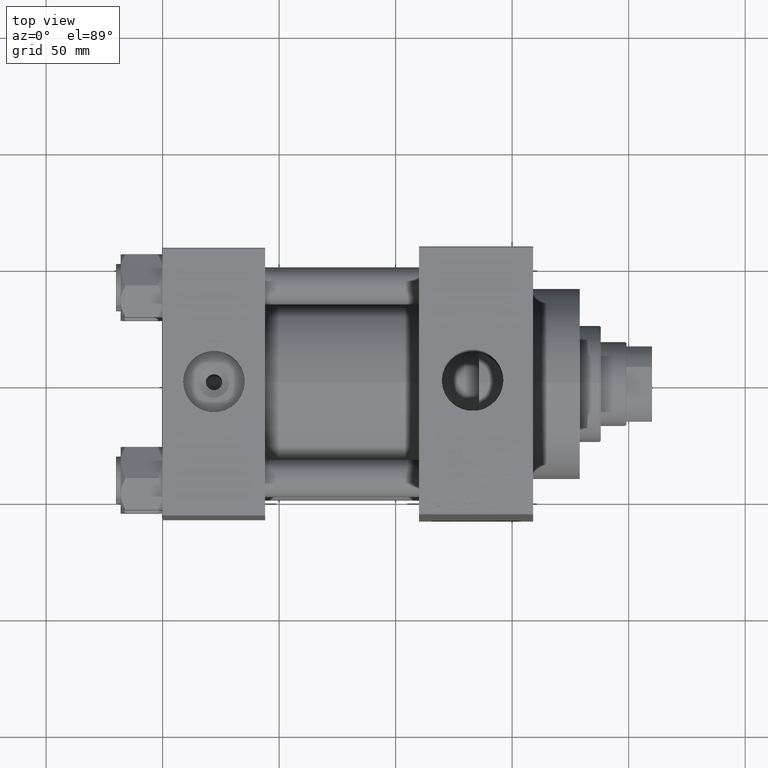
[diagram: clean part render]
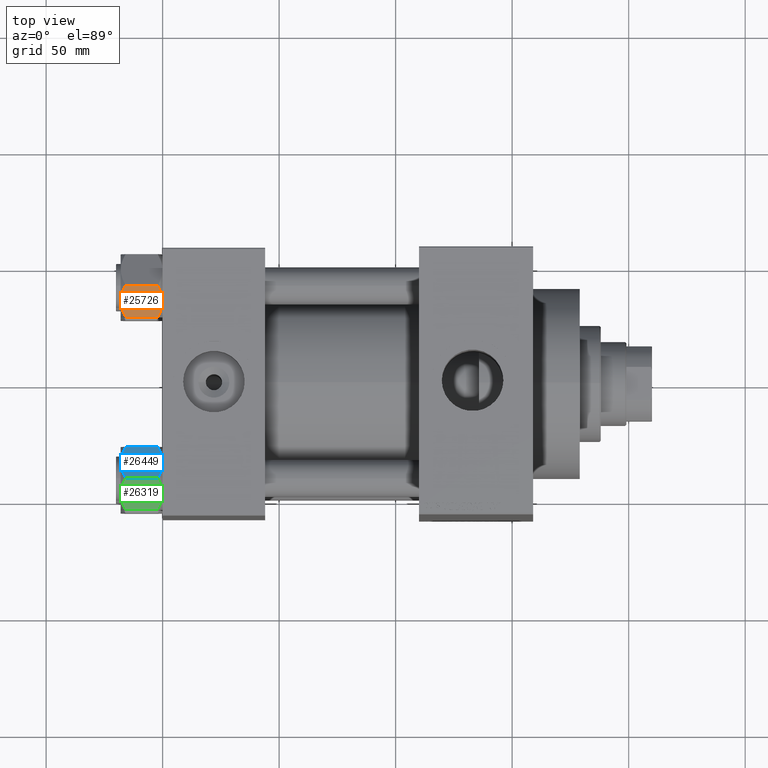
[diagram: same view with three faces highlighted in distinct colors, each labeled with its STEP entity id]
A machine part, top view with three faces highlighted in distinct colors.
Their STEP definitions:

[orange] entity #25726 — the highlighted planar face has unit normal (0, 0.5, -0.866).
#102 = DIRECTION ( 'NONE',  ( -0.5000000000000001110, -0.8660254037844387076, 0.000000000000000000 ) ) ;
#238 = CARTESIAN_POINT ( 'NONE',  ( 8.202637790192648382, -12.84724820552770908, -16.29368822085855584 ) ) ;
#325 = CARTESIAN_POINT ( 'NONE',  ( 15.62000000000000455, -3.536926823623210771E-15, -16.00000000000000000 ) ) ;
#660 = VECTOR ( 'NONE', #8064, 999.9999999999998863 ) ;
#1945 = EDGE_CURVE ( 'NONE', #2830, #23566, #42271, .T. ) ;
#2670 = CARTESIAN_POINT ( 'NONE',  ( 10.06459418565412989, -9.622245127110609531, -0.3836066851120581433 ) ) ;
#2830 = VERTEX_POINT ( 'NONE', #38232 ) ;
#3575 = CARTESIAN_POINT ( 'NONE',  ( 9.124083218049246824, -11.25125790807804016, -17.05261278537718539 ) ) ;
#4096 = PLANE ( 'NONE',  #26119 ) ;
#4291 = CARTESIAN_POINT ( 'NONE',  ( 7.903528262322682352, -13.36532110482643176, -16.00000000000000000 ) ) ;
#6053 = CARTESIAN_POINT ( 'NONE',  ( 10.38662926516872531, -9.064464007571851667, -0.2430846701012975009 ) ) ;
#6239 = ORIENTED_EDGE ( 'NONE', *, *, #24090, .T. ) ;
#6387 = CARTESIAN_POINT ( 'NONE',  ( 15.62000000000000455, -3.536926823623210771E-15, -18.00000000000000000 ) ) ;
#7159 = ORIENTED_EDGE ( 'NONE', *, *, #12786, .F. ) ;
#7236 = DIRECTION ( 'NONE',  ( -0.8660254037844387076, 0.5000000000000001110, 0.000000000000000000 ) ) ;
#7332 = VECTOR ( 'NONE', #28852, 999.9999999999998863 ) ;
#7803 = CARTESIAN_POINT ( 'NONE',  ( 7.810000000000007603, -13.52731680711293016, -1.999999999999998224 ) ) ;
#8064 = DIRECTION ( 'NONE',  ( 0.5000000000000001110, 0.8660254037844387076, -0.000000000000000000 ) ) ;
#8452 = ORIENTED_EDGE ( 'NONE', *, *, #13703, .F. ) ;
#10376 = VERTEX_POINT ( 'NONE', #7803 ) ;
#10507 = ORIENTED_EDGE ( 'NONE', *, *, #12649, .F. ) ;
#10597 = LINE ( 'NONE', #21198, #41448 ) ;
#10614 = CARTESIAN_POINT ( 'NONE',  ( 15.62000000000000455, -3.536926823623210771E-15, -18.00000000000000000 ) ) ;
#12649 = EDGE_CURVE ( 'NONE', #20649, #27408, #46070, .T. ) ;
#12786 = EDGE_CURVE ( 'NONE', #38297, #43657, #19115, .T. ) ;
#12800 = CARTESIAN_POINT ( 'NONE',  ( 13.99051971937274708, -2.822342635978012826, -0.7317196846281138756 ) ) ;
#13037 = CARTESIAN_POINT ( 'NONE',  ( 14.92394044919338825, -1.205610507090637107, -1.434462921875002239 ) ) ;
#13521 = CARTESIAN_POINT ( 'NONE',  ( 11.38181071908715047, -7.340759166634875044, -6.776263578034402713E-17 ) ) ;
#13703 = EDGE_CURVE ( 'NONE', #27408, #19399, #40923, .T. ) ;
#13734 = CARTESIAN_POINT ( 'NONE',  ( 14.30591678195076533, -2.276058899034901550, -0.9473872146228129454 ) ) ;
#13859 = LINE ( 'NONE', #6387, #39140 ) ;
#14433 = CARTESIAN_POINT ( 'NONE',  ( 8.506059550806623903, -12.32170630002230638, -16.56553707812499354 ) ) ;
#15808 = VECTOR ( 'NONE', #102, 999.9999999999998863 ) ;
#16247 = EDGE_LOOP ( 'NONE', ( #10507, #6239, #26668, #47704, #42371, #43609, #23099, #7159, #36111, #8452 ) ) ;
#16928 = CARTESIAN_POINT ( 'NONE',  ( 11.71500000000000519, -6.763658403556470411, -18.00000000000000000 ) ) ;
#17541 = CARTESIAN_POINT ( 'NONE',  ( 15.52647173767733157, -0.1619957022865091689, -2.000000000000000000 ) ) ;
#17952 = CARTESIAN_POINT ( 'NONE',  ( 11.71500000000000519, -6.763658403556470411, -18.00000000000000000 ) ) ;
#18083 = DIRECTION ( 'NONE',  ( -0.5000000000000000000, -0.8660254037844385966, 0.000000000000000000 ) ) ;
#19115 = LINE ( 'NONE', #25870, #15808 ) ;
#19399 = VERTEX_POINT ( 'NONE', #17952 ) ;
#20649 = VERTEX_POINT ( 'NONE', #325 ) ;
#21198 = CARTESIAN_POINT ( 'NONE',  ( 15.62000000000000455, -3.536926823623210771E-15, -1.999999999999998224 ) ) ;
#21394 = CARTESIAN_POINT ( 'NONE',  ( 15.62000000000000455, -3.536926823623210771E-15, -1.999999999999998224 ) ) ;
#23099 = ORIENTED_EDGE ( 'NONE', *, *, #36851, .F. ) ;
#23566 = VERTEX_POINT ( 'NONE', #42518 ) ;
#23647 = CARTESIAN_POINT ( 'NONE',  ( 12.37702203890362895, -5.617002596445058060, 1.219727444046192488E-16 ) ) ;
#23941 = EDGE_CURVE ( 'NONE', #42659, #25986, #10597, .T. ) ;
#24090 = EDGE_CURVE ( 'NONE', #20649, #25986, #13859, .T. ) ;
#24111 = EDGE_CURVE ( 'NONE', #10376, #2830, #43754, .T. ) ;
#24373 = CARTESIAN_POINT ( 'NONE',  ( 9.114548888011794858, -11.26777185211903998, -0.9142282604026928938 ) ) ;
#24587 = CARTESIAN_POINT ( 'NONE',  ( 15.52647173767733157, -0.1619957022865091689, -2.000000000000000000 ) ) ;
#25236 = CARTESIAN_POINT ( 'NONE',  ( 15.62000000000000455, -3.536926823623210771E-15, -16.00000000000000000 ) ) ;
#25263 = VECTOR ( 'NONE', #28945, 1000.000000000000000 ) ;
#25726 = ADVANCED_FACE ( 'NONE', ( #43644 ), #4096, .F. ) ;
#25870 = CARTESIAN_POINT ( 'NONE',  ( 15.62000000000000455, -3.536926823623210771E-15, -16.00000000000000000 ) ) ;
#25986 = VERTEX_POINT ( 'NONE', #21394 ) ;
#26119 = AXIS2_PLACEMENT_3D ( 'NONE', #10614, #7236, #18083 ) ;
#26668 = ORIENTED_EDGE ( 'NONE', *, *, #23941, .F. ) ;
#27408 = VERTEX_POINT ( 'NONE', #29405 ) ;
#28641 = B_SPLINE_CURVE_WITH_KNOTS ( 'NONE', 3,
 ( #40256, #40734, #43611, #40011, #3575, #14433, #238, #4291 ),
 .UNSPECIFIED., .F., .F.,
 ( 4, 2, 2, 4 ),
 ( 0.007890825462474429161, 0.01181022244528553977, 0.01376992093669109768, 0.01572961942809665559 ),
 .UNSPECIFIED. ) ;
#28852 = DIRECTION ( 'NONE',  ( -0.5000000000000001110, -0.8660254037844387076, 0.000000000000000000 ) ) ;
#28945 = DIRECTION ( 'NONE',  ( -0.000000000000000000, -0.000000000000000000, 1.000000000000000000 ) ) ;
#29405 = CARTESIAN_POINT ( 'NONE',  ( 15.52647173767733157, -0.1619957022865091689, -16.00000000000000000 ) ) ;
#30946 = CARTESIAN_POINT ( 'NONE',  ( 13.04337073483128862, -4.462852799541089155, -17.75691532989871035 ) ) ;
#31857 = CARTESIAN_POINT ( 'NONE',  ( 11.71500000000000519, -6.763658403556470411, 0.000000000000000000 ) ) ;
#34318 = CARTESIAN_POINT ( 'NONE',  ( 14.31545111198822262, -2.259544954993898624, -17.08577173959729834 ) ) ;
#34972 = CARTESIAN_POINT ( 'NONE',  ( 7.810000000000007603, -13.52731680711293016, -16.00000000000000000 ) ) ;
#34986 = CARTESIAN_POINT ( 'NONE',  ( 15.22736220980736732, -0.6800686015852290822, -1.706311779141445495 ) ) ;
#35068 = B_SPLINE_CURVE_WITH_KNOTS ( 'NONE', 3,
 ( #45839, #23647, #41994, #12800, #13734, #13037, #34986, #24587 ),
 .UNSPECIFIED., .F., .F.,
 ( 4, 2, 2, 4 ),
 ( 0.007890825462474423957, 0.01181022244528553630, 0.01376992093669109421, 0.01572961942809665212 ),
 .UNSPECIFIED. ) ;
#35256 = CARTESIAN_POINT ( 'NONE',  ( 12.04818928091285635, -6.186557640478064890, -17.99999999999999645 ) ) ;
#35475 = CARTESIAN_POINT ( 'NONE',  ( 11.04378428799595646, -7.926238119586006547, -0.05089381635301474388 ) ) ;
#35915 = DIRECTION ( 'NONE',  ( 0.5000000000000001110, 0.8660254037844387076, -0.000000000000000000 ) ) ;
#36111 = ORIENTED_EDGE ( 'NONE', *, *, #43783, .F. ) ;
#36769 = CARTESIAN_POINT ( 'NONE',  ( 15.62000000000000455, -3.536926823623210771E-15, -1.999999999999998224 ) ) ;
#36851 = EDGE_CURVE ( 'NONE', #43657, #10376, #39592, .T. ) ;
#37945 = CARTESIAN_POINT ( 'NONE',  ( 13.36540581434588049, -3.905071680002326406, -17.61639331488793658 ) ) ;
#38056 = EDGE_CURVE ( 'NONE', #23566, #42659, #35068, .T. ) ;
#38232 = CARTESIAN_POINT ( 'NONE',  ( 7.903528262322682352, -13.36532110482643176, -2.000000000000000000 ) ) ;
#38297 = VERTEX_POINT ( 'NONE', #44350 ) ;
#39140 = VECTOR ( 'NONE', #46648, 1000.000000000000000 ) ;
#39592 = LINE ( 'NONE', #40311, #25263 ) ;
#40011 = CARTESIAN_POINT ( 'NONE',  ( 9.439480280627265074, -10.70497417113492666, -17.26828031537187869 ) ) ;
#40256 = CARTESIAN_POINT ( 'NONE',  ( 11.71500000000000519, -6.763658403556470411, -18.00000000000000000 ) ) ;
#40311 = CARTESIAN_POINT ( 'NONE',  ( 7.810000000000007603, -13.52731680711293016, -18.00000000000000000 ) ) ;
#40734 = CARTESIAN_POINT ( 'NONE',  ( 11.05297796109638320, -7.910314210667885426, -18.00000000000000000 ) ) ;
#40923 = B_SPLINE_CURVE_WITH_KNOTS ( 'NONE', 3,
 ( #46109, #45655, #34318, #37945, #30946, #42500, #35256, #16928 ),
 .UNSPECIFIED., .F., .F.,
 ( 4, 2, 2, 4 ),
 ( 4.472842641924621132E-07, 0.003945636373369313527, 0.005918230917921871344, 0.007890825462474429161 ),
 .UNSPECIFIED. ) ;
#41448 = VECTOR ( 'NONE', #35915, 999.9999999999998863 ) ;
#41994 = CARTESIAN_POINT ( 'NONE',  ( 13.02784502466563588, -4.489744118371591597, -0.1971866459924554171 ) ) ;
#42271 = B_SPLINE_CURVE_WITH_KNOTS ( 'NONE', 3,
 ( #43183, #42946, #24373, #2670, #6053, #35475, #13521, #31857 ),
 .UNSPECIFIED., .F., .F.,
 ( 4, 2, 2, 4 ),
 ( 4.472842641884425184E-07, 0.003945636373369303986, 0.005918230917921863538, 0.007890825462474423957 ),
 .UNSPECIFIED. ) ;
#42371 = ORIENTED_EDGE ( 'NONE', *, *, #1945, .F. ) ;
#42500 = CARTESIAN_POINT ( 'NONE',  ( 12.38621571200405391, -5.601078687526932498, -17.94910618364698607 ) ) ;
#42518 = CARTESIAN_POINT ( 'NONE',  ( 11.71500000000000519, -6.763658403556470411, 0.000000000000000000 ) ) ;
#42659 = VERTEX_POINT ( 'NONE', #17541 ) ;
#42946 = CARTESIAN_POINT ( 'NONE',  ( 8.502393313253758578, -12.32805640973648309, -1.411989271640068599 ) ) ;
#43183 = CARTESIAN_POINT ( 'NONE',  ( 7.903528262322682352, -13.36532110482643176, -2.000000000000000000 ) ) ;
#43609 = ORIENTED_EDGE ( 'NONE', *, *, #24111, .F. ) ;
#43611 = CARTESIAN_POINT ( 'NONE',  ( 10.40215497533437627, -9.037572688741349225, -17.80281335400754372 ) ) ;
#43644 = FACE_OUTER_BOUND ( 'NONE', #16247, .T. ) ;
#43657 = VERTEX_POINT ( 'NONE', #34972 ) ;
#43754 = LINE ( 'NONE', #36769, #660 ) ;
#43783 = EDGE_CURVE ( 'NONE', #19399, #38297, #28641, .T. ) ;
#44350 = CARTESIAN_POINT ( 'NONE',  ( 7.903528262322682352, -13.36532110482643176, -16.00000000000000000 ) ) ;
#45655 = CARTESIAN_POINT ( 'NONE',  ( 14.92760668674625180, -1.199260397376455067, -16.58801072835992585 ) ) ;
#45839 = CARTESIAN_POINT ( 'NONE',  ( 11.71500000000000519, -6.763658403556470411, 0.000000000000000000 ) ) ;
#46070 = LINE ( 'NONE', #25236, #7332 ) ;
#46109 = CARTESIAN_POINT ( 'NONE',  ( 15.52647173767733157, -0.1619957022865091689, -16.00000000000000000 ) ) ;
#46648 = DIRECTION ( 'NONE',  ( -0.000000000000000000, -0.000000000000000000, 1.000000000000000000 ) ) ;
#47704 = ORIENTED_EDGE ( 'NONE', *, *, #38056, .F. ) ;

[blue] entity #26449 — the highlighted planar face has unit normal (0, -0.5, -0.866).
#228 = VERTEX_POINT ( 'NONE', #19339 ) ;
#250 = CARTESIAN_POINT ( 'NONE',  ( -8.202637790192644829, -12.84724820552771085, -1.706311779141443274 ) ) ;
#1588 = CARTESIAN_POINT ( 'NONE',  ( -7.810000000000004050, -13.52731680711293194, -16.00000000000000000 ) ) ;
#2278 = LINE ( 'NONE', #31460, #14175 ) ;
#2630 = ORIENTED_EDGE ( 'NONE', *, *, #28985, .F. ) ;
#3053 = FACE_OUTER_BOUND ( 'NONE', #33964, .T. ) ;
#3728 = EDGE_CURVE ( 'NONE', #38766, #9154, #30758, .T. ) ;
#3833 = CARTESIAN_POINT ( 'NONE',  ( -10.40215497533437450, -9.037572688741349225, -0.1971866459924505599 ) ) ;
#3961 = EDGE_CURVE ( 'NONE', #29527, #47595, #41585, .T. ) ;
#4467 = VECTOR ( 'NONE', #8806, 1000.000000000000114 ) ;
#4604 = CARTESIAN_POINT ( 'NONE',  ( -7.810000000000004050, -13.52731680711293194, -1.999999999999998224 ) ) ;
#4743 = CARTESIAN_POINT ( 'NONE',  ( -7.903528262322677023, -13.36532110482643176, -16.00000000000000000 ) ) ;
#4795 = DIRECTION ( 'NONE',  ( 0.4999999999999995559, -0.8660254037844389297, 0.000000000000000000 ) ) ;
#5628 = CARTESIAN_POINT ( 'NONE',  ( -15.52647173767732980, -0.1619957022864866314, -2.000000000000000000 ) ) ;
#6486 = ORIENTED_EDGE ( 'NONE', *, *, #25058, .F. ) ;
#7325 = EDGE_CURVE ( 'NONE', #228, #9154, #8817, .T. ) ;
#7936 = LINE ( 'NONE', #22637, #13141 ) ;
#8329 = DIRECTION ( 'NONE',  ( -0.000000000000000000, -0.000000000000000000, 1.000000000000000000 ) ) ;
#8806 = DIRECTION ( 'NONE',  ( -0.4999999999999995559, 0.8660254037844389297, 0.000000000000000000 ) ) ;
#8817 = LINE ( 'NONE', #34145, #13323 ) ;
#8832 = CARTESIAN_POINT ( 'NONE',  ( -11.71500000000000874, -6.763658403556465082, 0.000000000000000000 ) ) ;
#9154 = VERTEX_POINT ( 'NONE', #4604 ) ;
#9402 = B_SPLINE_CURVE_WITH_KNOTS ( 'NONE', 3,
 ( #33124, #44201, #18399, #14543, #21279, #25865, #25383, #35999 ),
 .UNSPECIFIED., .F., .F.,
 ( 4, 2, 2, 4 ),
 ( 4.472842642040518533E-07, 0.003945636373369329139, 0.005918230917921892160, 0.007890825462474455182 ),
 .UNSPECIFIED. ) ;
#9524 = VERTEX_POINT ( 'NONE', #38312 ) ;
#10227 = EDGE_CURVE ( 'NONE', #47595, #9524, #2278, .T. ) ;
#10755 = B_SPLINE_CURVE_WITH_KNOTS ( 'NONE', 3,
 ( #4743, #37545, #41405, #45252, #23065, #12471, #22359, #19687 ),
 .UNSPECIFIED., .F., .F.,
 ( 4, 2, 2, 4 ),
 ( 4.472842641823326050E-07, 0.003945636373369307455, 0.005918230917921868742, 0.007890825462474429161 ),
 .UNSPECIFIED. ) ;
#12455 = CARTESIAN_POINT ( 'NONE',  ( -7.903528262322677023, -13.36532110482643176, -2.000000000000000000 ) ) ;
#12471 = CARTESIAN_POINT ( 'NONE',  ( -11.04378428799594936, -7.926238119586001218, -17.94910618364699317 ) ) ;
#13042 = AXIS2_PLACEMENT_3D ( 'NONE', #39956, #14381, #40204 ) ;
#13141 = VECTOR ( 'NONE', #4795, 1000.000000000000114 ) ;
#13323 = VECTOR ( 'NONE', #38008, 1000.000000000000114 ) ;
#14175 = VECTOR ( 'NONE', #46164, 1000.000000000000114 ) ;
#14381 = DIRECTION ( 'NONE',  ( 0.8660254037844389297, 0.4999999999999995559, 0.000000000000000000 ) ) ;
#14543 = CARTESIAN_POINT ( 'NONE',  ( -13.36540581434588226, -3.905071680002311751, -0.3836066851120544796 ) ) ;
#16369 = ORIENTED_EDGE ( 'NONE', *, *, #3961, .F. ) ;
#17688 = CARTESIAN_POINT ( 'NONE',  ( -14.92394044919338825, -1.205610507090617345, -16.56553707812499709 ) ) ;
#17835 = CARTESIAN_POINT ( 'NONE',  ( -7.810000000000004050, -13.52731680711293194, -16.00000000000000000 ) ) ;
#17928 = CARTESIAN_POINT ( 'NONE',  ( -13.99051971937274530, -2.822342635977994618, -17.26828031537188934 ) ) ;
#18399 = CARTESIAN_POINT ( 'NONE',  ( -14.31545111198821552, -2.259544954993879973, -0.9142282604026908954 ) ) ;
#18552 = CARTESIAN_POINT ( 'NONE',  ( -9.124083218049239719, -11.25125790807803483, -0.9473872146228100588 ) ) ;
#18870 = CARTESIAN_POINT ( 'NONE',  ( -15.52647173767732980, -0.1619957022864866314, -16.00000000000000000 ) ) ;
#19339 = CARTESIAN_POINT ( 'NONE',  ( -7.903528262322677023, -13.36532110482643176, -2.000000000000000000 ) ) ;
#19658 = CARTESIAN_POINT ( 'NONE',  ( -7.810000000000004050, -13.52731680711293194, -18.00000000000000000 ) ) ;
#19673 = CARTESIAN_POINT ( 'NONE',  ( -11.05297796109638320, -7.910314210667880985, 6.220609964635581690E-15 ) ) ;
#19687 = CARTESIAN_POINT ( 'NONE',  ( -11.71500000000000874, -6.763658403556465082, -18.00000000000000000 ) ) ;
#20744 = VECTOR ( 'NONE', #8329, 1000.000000000000000 ) ;
#21279 = CARTESIAN_POINT ( 'NONE',  ( -13.04337073483128329, -4.462852799541076720, -0.2430846701012917832 ) ) ;
#22359 = CARTESIAN_POINT ( 'NONE',  ( -11.38181071908714692, -7.340759166634862609, -18.00000000000000711 ) ) ;
#22622 = EDGE_CURVE ( 'NONE', #38766, #30226, #25692, .T. ) ;
#22637 = CARTESIAN_POINT ( 'NONE',  ( -7.810000000000004050, -13.52731680711293194, -1.999999999999998224 ) ) ;
#23065 = CARTESIAN_POINT ( 'NONE',  ( -10.38662926516871998, -9.064464007571846338, -17.75691532989870325 ) ) ;
#23079 = ORIENTED_EDGE ( 'NONE', *, *, #40561, .F. ) ;
#23144 = ORIENTED_EDGE ( 'NONE', *, *, #10227, .F. ) ;
#24763 = PLANE ( 'NONE',  #13042 ) ;
#25035 = B_SPLINE_CURVE_WITH_KNOTS ( 'NONE', 3,
 ( #8832, #19673, #3833, #44110, #18552, #33275, #250, #12455 ),
 .UNSPECIFIED., .F., .F.,
 ( 4, 2, 2, 4 ),
 ( 0.007890825462474455182, 0.01181022244528557447, 0.01376992093669113237, 0.01572961942809669028 ),
 .UNSPECIFIED. ) ;
#25058 = EDGE_CURVE ( 'NONE', #30226, #29527, #10755, .T. ) ;
#25383 = CARTESIAN_POINT ( 'NONE',  ( -12.04818928091285635, -6.186557640478057785, 6.657678965418800665E-15 ) ) ;
#25403 = CARTESIAN_POINT ( 'NONE',  ( -12.37702203890362362, -5.617002596445044738, -18.00000000000000355 ) ) ;
#25487 = CARTESIAN_POINT ( 'NONE',  ( -7.903528262322677023, -13.36532110482643176, -16.00000000000000000 ) ) ;
#25692 = LINE ( 'NONE', #1588, #4467 ) ;
#25865 = CARTESIAN_POINT ( 'NONE',  ( -12.38621571200405391, -5.601078687526923616, -0.05089381635300848500 ) ) ;
#26449 = ADVANCED_FACE ( 'NONE', ( #3053 ), #24763, .F. ) ;
#27663 = CARTESIAN_POINT ( 'NONE',  ( -15.61999999999999922, 5.965997004755138422E-15, -18.00000000000000000 ) ) ;
#28025 = CARTESIAN_POINT ( 'NONE',  ( -11.71500000000000874, -6.763658403556465082, 0.000000000000000000 ) ) ;
#28263 = CARTESIAN_POINT ( 'NONE',  ( -11.71500000000000874, -6.763658403556465082, -18.00000000000000000 ) ) ;
#28421 = VECTOR ( 'NONE', #38768, 1000.000000000000000 ) ;
#28985 = EDGE_CURVE ( 'NONE', #43795, #44573, #7936, .T. ) ;
#29527 = VERTEX_POINT ( 'NONE', #28263 ) ;
#29869 = ORIENTED_EDGE ( 'NONE', *, *, #34692, .F. ) ;
#30226 = VERTEX_POINT ( 'NONE', #25487 ) ;
#30758 = LINE ( 'NONE', #19658, #20744 ) ;
#31460 = CARTESIAN_POINT ( 'NONE',  ( -7.810000000000004050, -13.52731680711293194, -16.00000000000000000 ) ) ;
#31753 = LINE ( 'NONE', #27663, #28421 ) ;
#31926 = CARTESIAN_POINT ( 'NONE',  ( -11.71500000000000874, -6.763658403556465082, -18.00000000000000000 ) ) ;
#32651 = CARTESIAN_POINT ( 'NONE',  ( -15.22736220980736199, -0.6800686015852087651, -16.29368822085855584 ) ) ;
#33124 = CARTESIAN_POINT ( 'NONE',  ( -15.52647173767732980, -0.1619957022864866314, -2.000000000000000000 ) ) ;
#33275 = CARTESIAN_POINT ( 'NONE',  ( -8.506059550806616798, -12.32170630002230460, -1.434462921875001351 ) ) ;
#33964 = EDGE_LOOP ( 'NONE', ( #35361, #45974, #41378, #23079, #29869, #2630, #44981, #23144, #16369, #6486 ) ) ;
#34145 = CARTESIAN_POINT ( 'NONE',  ( -7.810000000000004050, -13.52731680711293194, -1.999999999999998224 ) ) ;
#34692 = EDGE_CURVE ( 'NONE', #44573, #37760, #9402, .T. ) ;
#35361 = ORIENTED_EDGE ( 'NONE', *, *, #22622, .F. ) ;
#35782 = CARTESIAN_POINT ( 'NONE',  ( -13.02784502466562699, -4.489744118371573833, -17.80281335400755083 ) ) ;
#35999 = CARTESIAN_POINT ( 'NONE',  ( -11.71500000000000874, -6.763658403556465082, 0.000000000000000000 ) ) ;
#36018 = CARTESIAN_POINT ( 'NONE',  ( -14.30591678195076533, -2.276058899034883343, -17.05261278537718894 ) ) ;
#36624 = CARTESIAN_POINT ( 'NONE',  ( -15.61999999999999922, 5.965997004755138422E-15, -1.999999999999998224 ) ) ;
#37545 = CARTESIAN_POINT ( 'NONE',  ( -8.502393313253756801, -12.32805640973648842, -16.58801072835994006 ) ) ;
#37760 = VERTEX_POINT ( 'NONE', #28025 ) ;
#38008 = DIRECTION ( 'NONE',  ( 0.4999999999999995559, -0.8660254037844389297, 0.000000000000000000 ) ) ;
#38312 = CARTESIAN_POINT ( 'NONE',  ( -15.61999999999999922, 5.965997004755138422E-15, -16.00000000000000000 ) ) ;
#38766 = VERTEX_POINT ( 'NONE', #17835 ) ;
#38768 = DIRECTION ( 'NONE',  ( -0.000000000000000000, -0.000000000000000000, 1.000000000000000000 ) ) ;
#39956 = CARTESIAN_POINT ( 'NONE',  ( -7.810000000000004050, -13.52731680711293194, -18.00000000000000000 ) ) ;
#40204 = DIRECTION ( 'NONE',  ( -0.4999999999999995559, 0.8660254037844389297, 0.000000000000000000 ) ) ;
#40561 = EDGE_CURVE ( 'NONE', #37760, #228, #25035, .T. ) ;
#41378 = ORIENTED_EDGE ( 'NONE', *, *, #7325, .F. ) ;
#41405 = CARTESIAN_POINT ( 'NONE',  ( -9.114548888011784200, -11.26777185211903998, -17.08577173959730544 ) ) ;
#41585 = B_SPLINE_CURVE_WITH_KNOTS ( 'NONE', 3,
 ( #31926, #25403, #35782, #17928, #36018, #17688, #32651, #46626 ),
 .UNSPECIFIED., .F., .F.,
 ( 4, 2, 2, 4 ),
 ( 0.007890825462474429161, 0.01181022244528554671, 0.01376992093669110635, 0.01572961942809666600 ),
 .UNSPECIFIED. ) ;
#43215 = EDGE_CURVE ( 'NONE', #9524, #43795, #31753, .T. ) ;
#43795 = VERTEX_POINT ( 'NONE', #36624 ) ;
#44110 = CARTESIAN_POINT ( 'NONE',  ( -9.439480280627263298, -10.70497417113492133, -0.7317196846281108780 ) ) ;
#44201 = CARTESIAN_POINT ( 'NONE',  ( -14.92760668674625002, -1.199260397376435083, -1.411989271640064603 ) ) ;
#44573 = VERTEX_POINT ( 'NONE', #5628 ) ;
#44981 = ORIENTED_EDGE ( 'NONE', *, *, #43215, .F. ) ;
#45252 = CARTESIAN_POINT ( 'NONE',  ( -10.06459418565412456, -9.622245127110604201, -17.61639331488794014 ) ) ;
#45974 = ORIENTED_EDGE ( 'NONE', *, *, #3728, .T. ) ;
#46164 = DIRECTION ( 'NONE',  ( -0.4999999999999995559, 0.8660254037844389297, 0.000000000000000000 ) ) ;
#46626 = CARTESIAN_POINT ( 'NONE',  ( -15.52647173767732980, -0.1619957022864866314, -16.00000000000000000 ) ) ;
#47595 = VERTEX_POINT ( 'NONE', #18870 ) ;

[green] entity #26319 — the highlighted planar face has unit normal (0, 0.5, -0.866).
#1127 = CARTESIAN_POINT ( 'NONE',  ( -12.04818928091285635, 6.186557640478063114, -18.00000000000000355 ) ) ;
#1175 = B_SPLINE_CURVE_WITH_KNOTS ( 'NONE', 3,
 ( #38484, #30771, #12916, #15588, #16068, #34631, #1127, #34387 ),
 .UNSPECIFIED., .F., .F.,
 ( 4, 2, 2, 4 ),
 ( 4.472842641944555523E-07, 0.003945636373369313527, 0.005918230917921874813, 0.007890825462474436100 ),
 .UNSPECIFIED. ) ;
#1910 = CARTESIAN_POINT ( 'NONE',  ( -10.38662926516872176, 9.064464007571851667, -0.2430846701012917277 ) ) ;
#2074 = ORIENTED_EDGE ( 'NONE', *, *, #16494, .F. ) ;
#2369 = CARTESIAN_POINT ( 'NONE',  ( -10.06459418565412456, 9.622245127110613083, -0.3836066851120558119 ) ) ;
#2396 = CARTESIAN_POINT ( 'NONE',  ( -11.71500000000000519, 6.763658403556469523, 0.000000000000000000 ) ) ;
#3419 = EDGE_LOOP ( 'NONE', ( #32512, #14179, #22830, #5313, #4558, #39044, #2074, #24326, #5753, #4803 ) ) ;
#3721 = CARTESIAN_POINT ( 'NONE',  ( -15.61999999999999922, 5.965997004755138422E-15, -16.00000000000000000 ) ) ;
#3994 = VERTEX_POINT ( 'NONE', #43727 ) ;
#4126 = FACE_OUTER_BOUND ( 'NONE', #3419, .T. ) ;
#4558 = ORIENTED_EDGE ( 'NONE', *, *, #30127, .F. ) ;
#4803 = ORIENTED_EDGE ( 'NONE', *, *, #37329, .F. ) ;
#5185 = VECTOR ( 'NONE', #7182, 999.9999999999998863 ) ;
#5198 = VERTEX_POINT ( 'NONE', #15852 ) ;
#5313 = ORIENTED_EDGE ( 'NONE', *, *, #8861, .F. ) ;
#5753 = ORIENTED_EDGE ( 'NONE', *, *, #8634, .F. ) ;
#5839 = VERTEX_POINT ( 'NONE', #12603 ) ;
#6115 = AXIS2_PLACEMENT_3D ( 'NONE', #22451, #43673, #18832 ) ;
#7182 = DIRECTION ( 'NONE',  ( 0.5000000000000001110, 0.8660254037844387076, 0.000000000000000000 ) ) ;
#7411 = DIRECTION ( 'NONE',  ( -0.5000000000000001110, -0.8660254037844387076, 0.000000000000000000 ) ) ;
#7943 = EDGE_CURVE ( 'NONE', #3994, #34601, #19065, .T. ) ;
#8476 = CARTESIAN_POINT ( 'NONE',  ( -11.71500000000000519, 6.763658403556469523, -18.00000000000000000 ) ) ;
#8634 = EDGE_CURVE ( 'NONE', #41307, #15818, #30891, .T. ) ;
#8861 = EDGE_CURVE ( 'NONE', #13198, #5839, #35995, .T. ) ;
#9524 = VERTEX_POINT ( 'NONE', #38312 ) ;
#11043 = LINE ( 'NONE', #41175, #21607 ) ;
#11332 = VERTEX_POINT ( 'NONE', #16876 ) ;
#11523 = LINE ( 'NONE', #43831, #5185 ) ;
#12395 = CARTESIAN_POINT ( 'NONE',  ( -15.52647173767733157, 0.1619957022865013696, -2.000000000000000000 ) ) ;
#12506 = CARTESIAN_POINT ( 'NONE',  ( -7.903528262322675246, 13.36532110482643532, -16.00000000000000000 ) ) ;
#12603 = CARTESIAN_POINT ( 'NONE',  ( -15.52647173767733157, 0.1619957022865013696, -2.000000000000000000 ) ) ;
#12916 = CARTESIAN_POINT ( 'NONE',  ( -14.31545111198821374, 2.259544954993891963, -17.08577173959730544 ) ) ;
#13198 = VERTEX_POINT ( 'NONE', #2396 ) ;
#14179 = ORIENTED_EDGE ( 'NONE', *, *, #43215, .T. ) ;
#14502 = CARTESIAN_POINT ( 'NONE',  ( -7.903528262322675246, 13.36532110482643532, -16.00000000000000000 ) ) ;
#15588 = CARTESIAN_POINT ( 'NONE',  ( -13.36540581434587516, 3.905071680002321077, -17.61639331488793658 ) ) ;
#15818 = VERTEX_POINT ( 'NONE', #14502 ) ;
#15852 = CARTESIAN_POINT ( 'NONE',  ( -7.809999999999997833, 13.52731680711293905, -16.00000000000000000 ) ) ;
#16005 = CARTESIAN_POINT ( 'NONE',  ( -13.02784502466562344, 4.489744118371584491, -0.1971866459924506432 ) ) ;
#16068 = CARTESIAN_POINT ( 'NONE',  ( -13.04337073483128329, 4.462852799541082938, -17.75691532989870680 ) ) ;
#16252 = CARTESIAN_POINT ( 'NONE',  ( -14.30591678195076533, 2.276058899034895777, -0.9473872146228109470 ) ) ;
#16494 = EDGE_CURVE ( 'NONE', #5198, #3994, #42340, .T. ) ;
#16876 = CARTESIAN_POINT ( 'NONE',  ( -15.52647173767733157, 0.1619957022865013696, -16.00000000000000000 ) ) ;
#17058 = CARTESIAN_POINT ( 'NONE',  ( -11.05297796109637787, 7.910314210667883650, -18.00000000000000000 ) ) ;
#17078 = CARTESIAN_POINT ( 'NONE',  ( -11.04378428799595291, 7.926238119586004771, -0.05089381635300850582 ) ) ;
#17534 = CARTESIAN_POINT ( 'NONE',  ( -8.502393313253746143, 12.32805640973648309, -1.411989271640066379 ) ) ;
#18832 = DIRECTION ( 'NONE',  ( 0.5000000000000000000, 0.8660254037844385966, 0.000000000000000000 ) ) ;
#19065 = LINE ( 'NONE', #29924, #20238 ) ;
#20238 = VECTOR ( 'NONE', #26777, 999.9999999999998863 ) ;
#20654 = CARTESIAN_POINT ( 'NONE',  ( -8.202637790192643052, 12.84724820552771085, -16.29368822085855584 ) ) ;
#20679 = VECTOR ( 'NONE', #33164, 999.9999999999998863 ) ;
#21607 = VECTOR ( 'NONE', #7411, 999.9999999999998863 ) ;
#22451 = CARTESIAN_POINT ( 'NONE',  ( -15.61999999999999922, 5.965997004755138422E-15, -18.00000000000000000 ) ) ;
#22830 = ORIENTED_EDGE ( 'NONE', *, *, #46156, .F. ) ;
#23348 = CARTESIAN_POINT ( 'NONE',  ( -10.40215497533437272, 9.037572688741345672, -17.80281335400754728 ) ) ;
#23467 = CARTESIAN_POINT ( 'NONE',  ( -14.92394044919338292, 1.205610507090630223, -1.434462921875001573 ) ) ;
#24326 = ORIENTED_EDGE ( 'NONE', *, *, #38477, .F. ) ;
#26319 = ADVANCED_FACE ( 'NONE', ( #4126 ), #40553, .F. ) ;
#26777 = DIRECTION ( 'NONE',  ( -0.5000000000000001110, -0.8660254037844387076, 0.000000000000000000 ) ) ;
#27619 = CARTESIAN_POINT ( 'NONE',  ( -7.809999999999997833, 13.52731680711293905, -18.00000000000000000 ) ) ;
#27663 = CARTESIAN_POINT ( 'NONE',  ( -15.61999999999999922, 5.965997004755138422E-15, -18.00000000000000000 ) ) ;
#28202 = VECTOR ( 'NONE', #42575, 1000.000000000000000 ) ;
#28421 = VECTOR ( 'NONE', #38768, 1000.000000000000000 ) ;
#29924 = CARTESIAN_POINT ( 'NONE',  ( -15.61999999999999922, 5.965997004755138422E-15, -1.999999999999998224 ) ) ;
#30127 = EDGE_CURVE ( 'NONE', #34601, #13198, #37352, .T. ) ;
#30706 = CARTESIAN_POINT ( 'NONE',  ( -13.99051971937274175, 2.822342635978007053, -0.7317196846281102118 ) ) ;
#30771 = CARTESIAN_POINT ( 'NONE',  ( -14.92760668674625713, 1.199260397376447962, -16.58801072835993295 ) ) ;
#30891 = B_SPLINE_CURVE_WITH_KNOTS ( 'NONE', 3,
 ( #34919, #17058, #23348, #34687, #42391, #31066, #20654, #12506 ),
 .UNSPECIFIED., .F., .F.,
 ( 4, 2, 2, 4 ),
 ( 0.007890825462474436100, 0.01181022244528555365, 0.01376992093669111156, 0.01572961942809666946 ),
 .UNSPECIFIED. ) ;
#31066 = CARTESIAN_POINT ( 'NONE',  ( -8.506059550806615022, 12.32170630002230638, -16.56553707812499709 ) ) ;
#31313 = CARTESIAN_POINT ( 'NONE',  ( -11.71500000000000519, 6.763658403556469523, 0.000000000000000000 ) ) ;
#31753 = LINE ( 'NONE', #27663, #28421 ) ;
#32010 = CARTESIAN_POINT ( 'NONE',  ( -7.903528262322675246, 13.36532110482643532, -2.000000000000000000 ) ) ;
#32256 = CARTESIAN_POINT ( 'NONE',  ( -9.114548888011782424, 11.26777185211904353, -0.9142282604026915616 ) ) ;
#32512 = ORIENTED_EDGE ( 'NONE', *, *, #34567, .F. ) ;
#33164 = DIRECTION ( 'NONE',  ( 0.5000000000000001110, 0.8660254037844387076, 0.000000000000000000 ) ) ;
#34328 = CARTESIAN_POINT ( 'NONE',  ( -12.37702203890362540, 5.617002596445050067, 4.589224508223797659E-15 ) ) ;
#34387 = CARTESIAN_POINT ( 'NONE',  ( -11.71500000000000519, 6.763658403556469523, -18.00000000000000000 ) ) ;
#34567 = EDGE_CURVE ( 'NONE', #9524, #11332, #11523, .T. ) ;
#34601 = VERTEX_POINT ( 'NONE', #43006 ) ;
#34631 = CARTESIAN_POINT ( 'NONE',  ( -12.38621571200405569, 5.601078687526929833, -17.94910618364698962 ) ) ;
#34687 = CARTESIAN_POINT ( 'NONE',  ( -9.439480280627257969, 10.70497417113493022, -17.26828031537188934 ) ) ;
#34919 = CARTESIAN_POINT ( 'NONE',  ( -11.71500000000000519, 6.763658403556469523, -18.00000000000000000 ) ) ;
#35995 = B_SPLINE_CURVE_WITH_KNOTS ( 'NONE', 3,
 ( #37958, #34328, #16005, #30706, #16252, #23467, #45427, #12395 ),
 .UNSPECIFIED., .F., .F.,
 ( 4, 2, 2, 4 ),
 ( 0.007890825462474437835, 0.01181022244528555365, 0.01376992093669111156, 0.01572961942809666946 ),
 .UNSPECIFIED. ) ;
#36533 = LINE ( 'NONE', #3721, #20679 ) ;
#36624 = CARTESIAN_POINT ( 'NONE',  ( -15.61999999999999922, 5.965997004755138422E-15, -1.999999999999998224 ) ) ;
#37329 = EDGE_CURVE ( 'NONE', #11332, #41307, #1175, .T. ) ;
#37352 = B_SPLINE_CURVE_WITH_KNOTS ( 'NONE', 3,
 ( #32010, #17534, #32256, #2369, #1910, #17078, #46952, #31313 ),
 .UNSPECIFIED., .F., .F.,
 ( 4, 2, 2, 4 ),
 ( 4.472842641925243172E-07, 0.003945636373369315261, 0.005918230917921876548, 0.007890825462474437835 ),
 .UNSPECIFIED. ) ;
#37958 = CARTESIAN_POINT ( 'NONE',  ( -11.71500000000000519, 6.763658403556469523, 0.000000000000000000 ) ) ;
#38312 = CARTESIAN_POINT ( 'NONE',  ( -15.61999999999999922, 5.965997004755138422E-15, -16.00000000000000000 ) ) ;
#38477 = EDGE_CURVE ( 'NONE', #15818, #5198, #36533, .T. ) ;
#38484 = CARTESIAN_POINT ( 'NONE',  ( -15.52647173767733157, 0.1619957022865013696, -16.00000000000000000 ) ) ;
#38768 = DIRECTION ( 'NONE',  ( -0.000000000000000000, -0.000000000000000000, 1.000000000000000000 ) ) ;
#39044 = ORIENTED_EDGE ( 'NONE', *, *, #7943, .F. ) ;
#40553 = PLANE ( 'NONE',  #6115 ) ;
#41175 = CARTESIAN_POINT ( 'NONE',  ( -15.61999999999999922, 5.965997004755138422E-15, -1.999999999999998224 ) ) ;
#41307 = VERTEX_POINT ( 'NONE', #8476 ) ;
#42340 = LINE ( 'NONE', #27619, #28202 ) ;
#42391 = CARTESIAN_POINT ( 'NONE',  ( -9.124083218049239719, 11.25125790807804194, -17.05261278537718539 ) ) ;
#42575 = DIRECTION ( 'NONE',  ( -0.000000000000000000, -0.000000000000000000, 1.000000000000000000 ) ) ;
#43006 = CARTESIAN_POINT ( 'NONE',  ( -7.903528262322675246, 13.36532110482643532, -2.000000000000000000 ) ) ;
#43215 = EDGE_CURVE ( 'NONE', #9524, #43795, #31753, .T. ) ;
#43673 = DIRECTION ( 'NONE',  ( 0.8660254037844387076, -0.5000000000000001110, 0.000000000000000000 ) ) ;
#43727 = CARTESIAN_POINT ( 'NONE',  ( -7.809999999999997833, 13.52731680711293905, -1.999999999999998224 ) ) ;
#43795 = VERTEX_POINT ( 'NONE', #36624 ) ;
#43831 = CARTESIAN_POINT ( 'NONE',  ( -15.61999999999999922, 5.965997004755138422E-15, -16.00000000000000000 ) ) ;
#45427 = CARTESIAN_POINT ( 'NONE',  ( -15.22736220980736022, 0.6800686015852228650, -1.706311779141443052 ) ) ;
#46156 = EDGE_CURVE ( 'NONE', #5839, #43795, #11043, .T. ) ;
#46952 = CARTESIAN_POINT ( 'NONE',  ( -11.38181071908714692, 7.340759166634869715, 4.875521644395752752E-15 ) ) ;